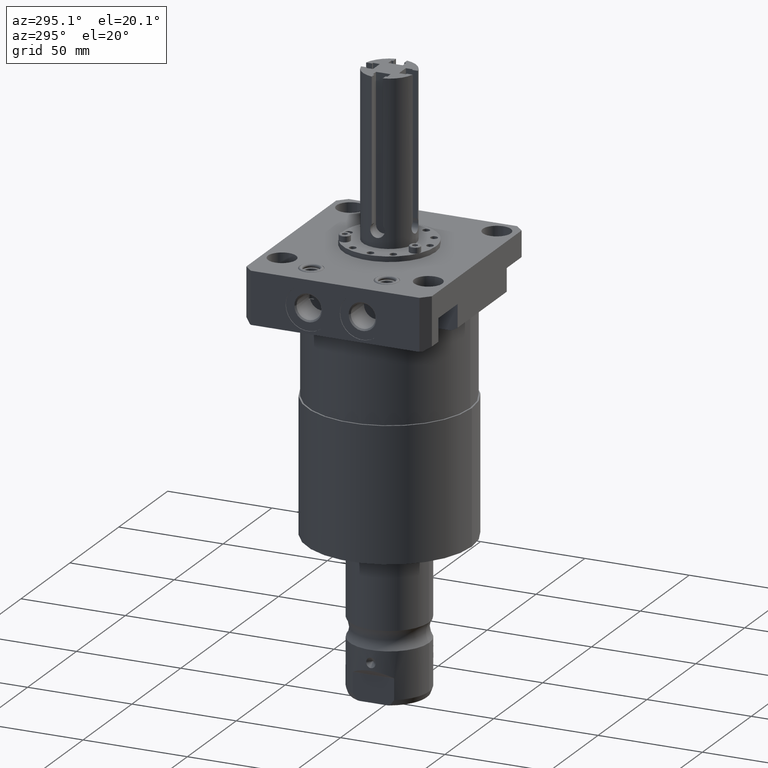
[diagram: clean part render]
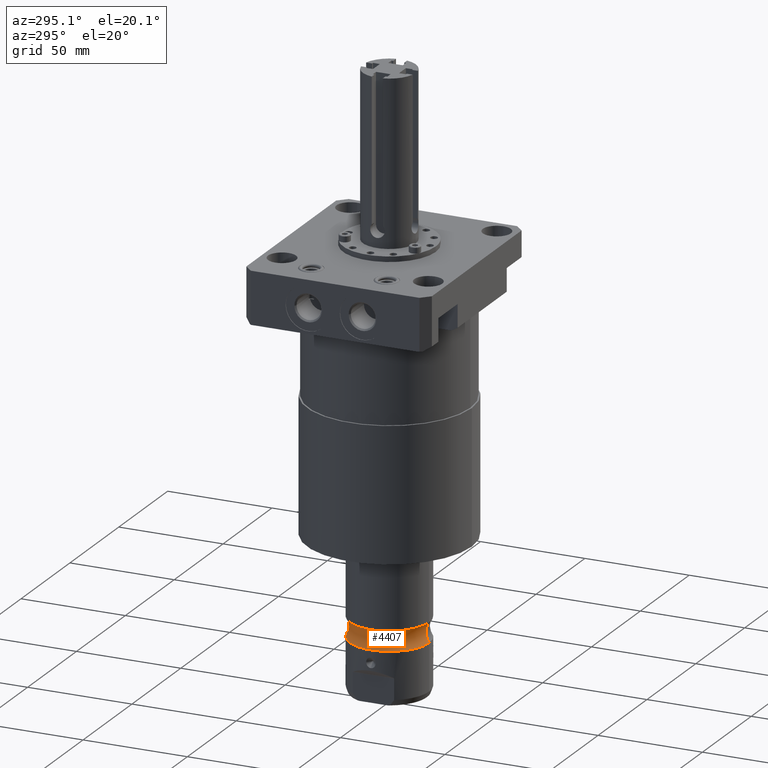
[diagram: same view with one face highlighted and labeled with its STEP entity id]
A machine part, auxiliary view. The second image highlights one B-rep face of the part: STEP entity #4407.
In plain terms, the highlighted toroidal blend (fillet) surface has major radius 25.4255 mm and minor (blend) radius 7.925 mm.
Its self-contained STEP definition (entity closure, byte-faithful):
#1113=CARTESIAN_POINT('',(0.E0,-2.54255E1,-1.5141E2));
#1114=DIRECTION('',(-1.E0,0.E0,0.E0));
#1115=DIRECTION('',(0.E0,8.044794952681E-1,5.939804219780E-1));
#1116=AXIS2_PLACEMENT_3D('',#1113,#1114,#1115);
#1118=CARTESIAN_POINT('',(0.E0,2.54255E1,-1.5141E2));
#1119=DIRECTION('',(1.E0,0.E0,0.E0));
#1120=DIRECTION('',(0.E0,-8.044794952681E-1,5.939804219780E-1));
#1121=AXIS2_PLACEMENT_3D('',#1118,#1119,#1120);
#1123=CARTESIAN_POINT('',(0.E0,0.E0,-1.467027051558E2));
#1124=DIRECTION('',(0.E0,0.E0,-1.E0));
#1125=DIRECTION('',(0.E0,-1.E0,0.E0));
#1126=AXIS2_PLACEMENT_3D('',#1123,#1124,#1125);
#1401=CARTESIAN_POINT('',(0.E0,0.E0,-1.561172948442E2));
#1402=DIRECTION('',(0.E0,0.E0,-1.E0));
#1403=DIRECTION('',(0.E0,-1.E0,0.E0));
#1404=AXIS2_PLACEMENT_3D('',#1401,#1402,#1403);
#2955=CARTESIAN_POINT('',(0.E0,-1.905E1,-1.467027051558E2));
#2956=CARTESIAN_POINT('',(0.E0,-1.905E1,-1.561172948442E2));
#2957=VERTEX_POINT('',#2955);
#2958=VERTEX_POINT('',#2956);
#2959=CARTESIAN_POINT('',(0.E0,1.905E1,-1.467027051558E2));
#2960=CARTESIAN_POINT('',(0.E0,1.905E1,-1.561172948442E2));
#2961=VERTEX_POINT('',#2959);
#2962=VERTEX_POINT('',#2960);
#4393=CARTESIAN_POINT('',(0.E0,0.E0,-1.5141E2));
#4394=DIRECTION('',(0.E0,0.E0,1.E0));
#4395=DIRECTION('',(0.E0,1.E0,0.E0));
#4396=AXIS2_PLACEMENT_3D('',#4393,#4394,#4395);
#4397=TOROIDAL_SURFACE('',#4396,2.54255E1,7.925E0);
#4399=ORIENTED_EDGE('',*,*,#4398,.T.);
#4401=ORIENTED_EDGE('',*,*,#4400,.T.);
#4403=ORIENTED_EDGE('',*,*,#4402,.F.);
#4404=ORIENTED_EDGE('',*,*,#4387,.F.);
#4405=EDGE_LOOP('',(#4399,#4401,#4403,#4404));
#4406=FACE_OUTER_BOUND('',#4405,.F.);
#1117=CIRCLE('',#1116,7.925E0);
#1122=CIRCLE('',#1121,7.925E0);
#1127=CIRCLE('',#1126,1.905E1);
#1405=CIRCLE('',#1404,1.905E1);
#4387=EDGE_CURVE('',#2957,#2961,#1127,.T.);
#4398=EDGE_CURVE('',#2957,#2958,#1117,.T.);
#4400=EDGE_CURVE('',#2958,#2962,#1405,.T.);
#4402=EDGE_CURVE('',#2961,#2962,#1122,.T.);
#4407=ADVANCED_FACE('',(#4406),#4397,.F.);